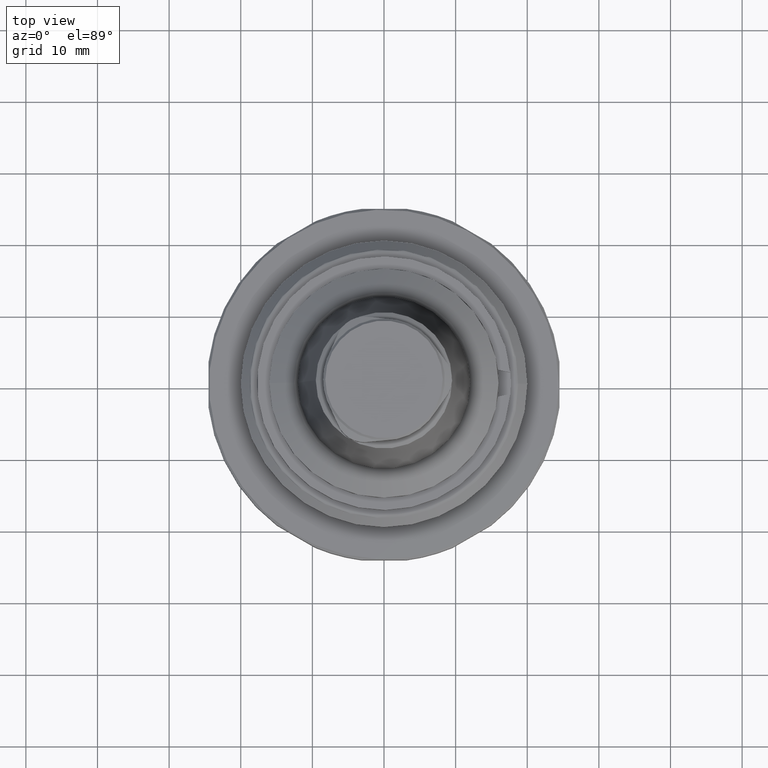
[diagram: clean part render]
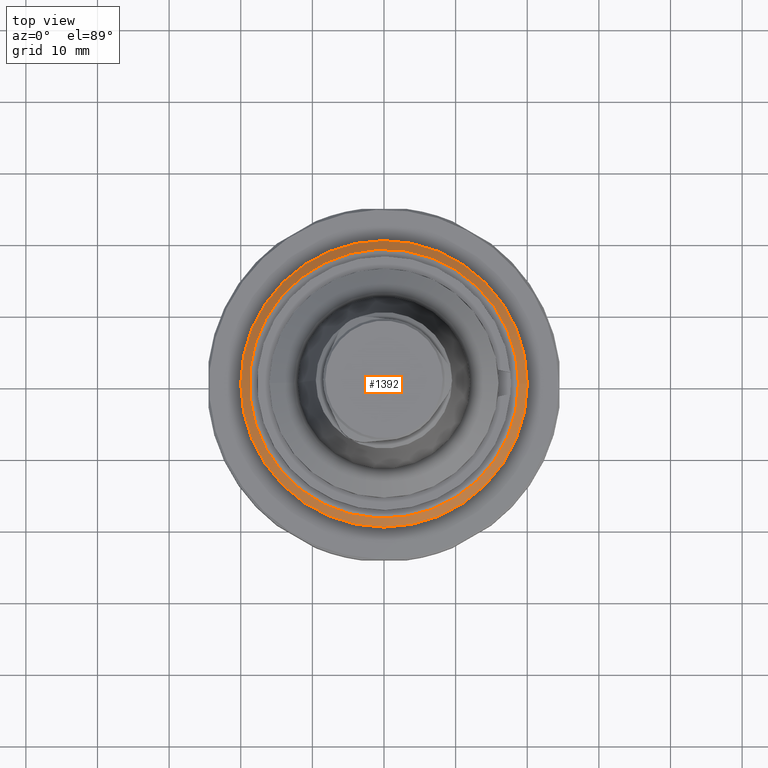
[diagram: same view with one face highlighted and labeled with its STEP entity id]
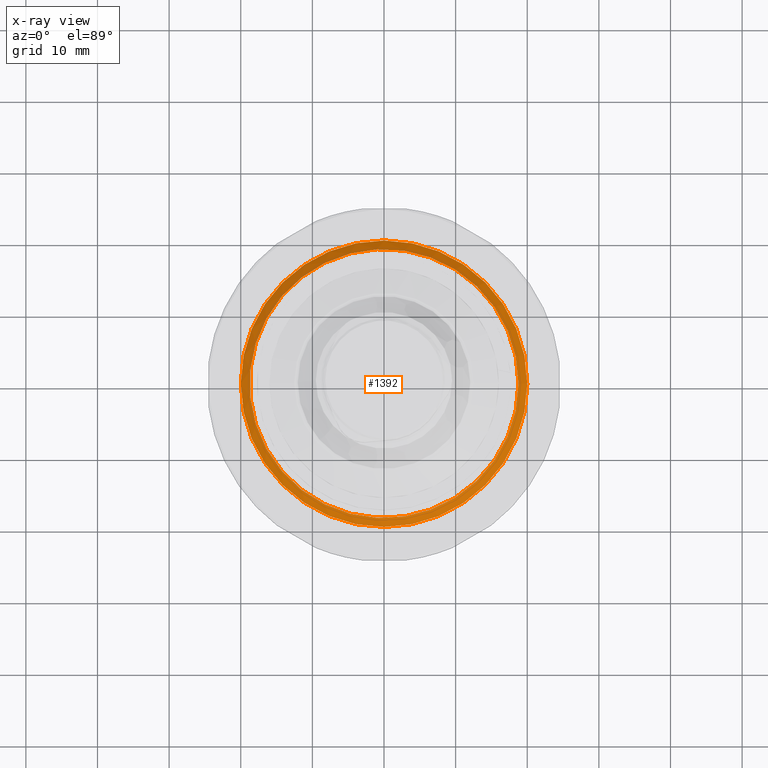
[diagram: x-ray of the same camera — body ghosted, the highlighted face saturated]
A machine part, top view. The second image highlights one B-rep face of the part: STEP entity #1392.
The next image is the same camera in x-ray: the body ghosted, the highlighted face saturated — about 0% of this face is hidden behind the body in this view.
In plain terms, the highlighted conical surface has half-angle 45 deg.
Its self-contained STEP definition (entity closure, byte-faithful):
#230=CONICAL_SURFACE('',#1559,18.7757350979542,0.785398163397448);
#439=ORIENTED_EDGE('',*,*,#705,.F.);
#440=ORIENTED_EDGE('',*,*,#706,.T.);
#705=EDGE_CURVE('',#863,#863,#971,.T.);
#706=EDGE_CURVE('',#864,#864,#972,.T.);
#863=VERTEX_POINT('',#2387);
#864=VERTEX_POINT('',#2390);
#971=CIRCLE('',#1558,20.);
#972=CIRCLE('',#1560,18.7757350979542);
#1102=EDGE_LOOP('',(#439));
#1103=EDGE_LOOP('',(#440));
#1248=FACE_BOUND('',#1102,.T.);
#1249=FACE_BOUND('',#1103,.T.);
#1392=ADVANCED_FACE('',(#1248,#1249),#230,.T.);
#1558=AXIS2_PLACEMENT_3D('',#2386,#1884,#1885);
#1559=AXIS2_PLACEMENT_3D('',#2388,#1886,#1887);
#1560=AXIS2_PLACEMENT_3D('',#2389,#1888,#1889);
#1884=DIRECTION('',(-5.81167827188054E-17,-2.60563148754756E-18,-1.));
#1885=DIRECTION('',(1.,-6.12303176911189E-17,-5.81167827188054E-17));
#1886=DIRECTION('',(-5.81167827188054E-17,-2.60563148754756E-18,-1.));
#1887=DIRECTION('',(1.,-6.12303176911189E-17,-5.81167827188054E-17));
#1888=DIRECTION('',(-5.81167827188054E-17,-2.60563148754756E-18,-1.));
#1889=DIRECTION('',(1.,-6.12303176911189E-17,-5.81167827188054E-17));
#2386=CARTESIAN_POINT('',(-4.00042837164014E-16,-1.14647785452093E-17,3.));
#2387=CARTESIAN_POINT('',(20.,-1.23607113236759E-15,3.));
#2388=CARTESIAN_POINT('',(-3.28892499861557E-16,-8.2747953673393E-18,4.22426490204584));
#2389=CARTESIAN_POINT('',(-3.28892499861557E-16,-8.2747953673393E-18,4.22426490204584));
#2390=CARTESIAN_POINT('',(18.7757350979542,-1.15791902029936E-15,4.22426490204584));